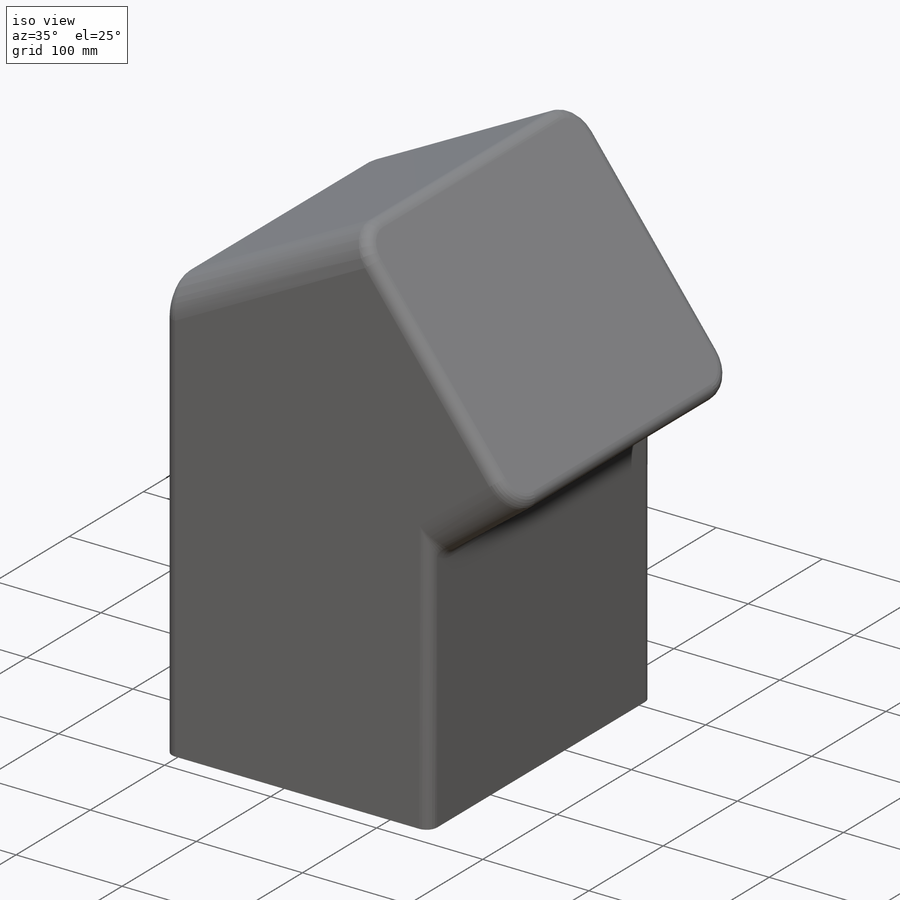
[diagram: iso view]
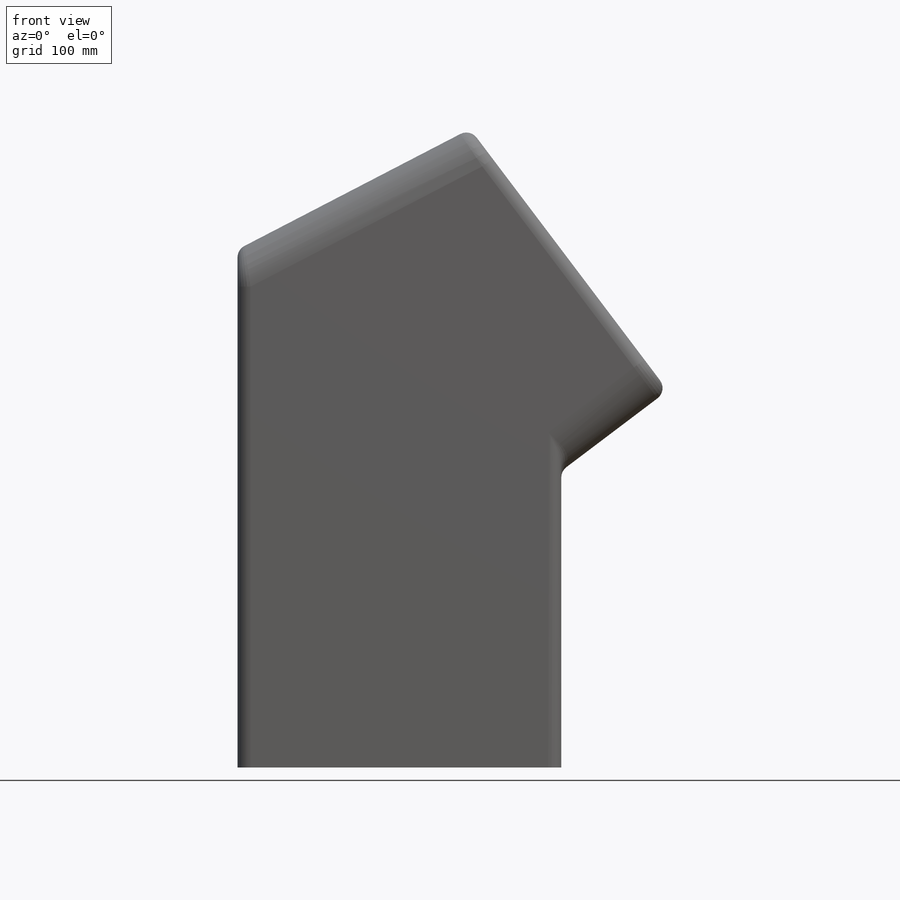
[diagram: front view]
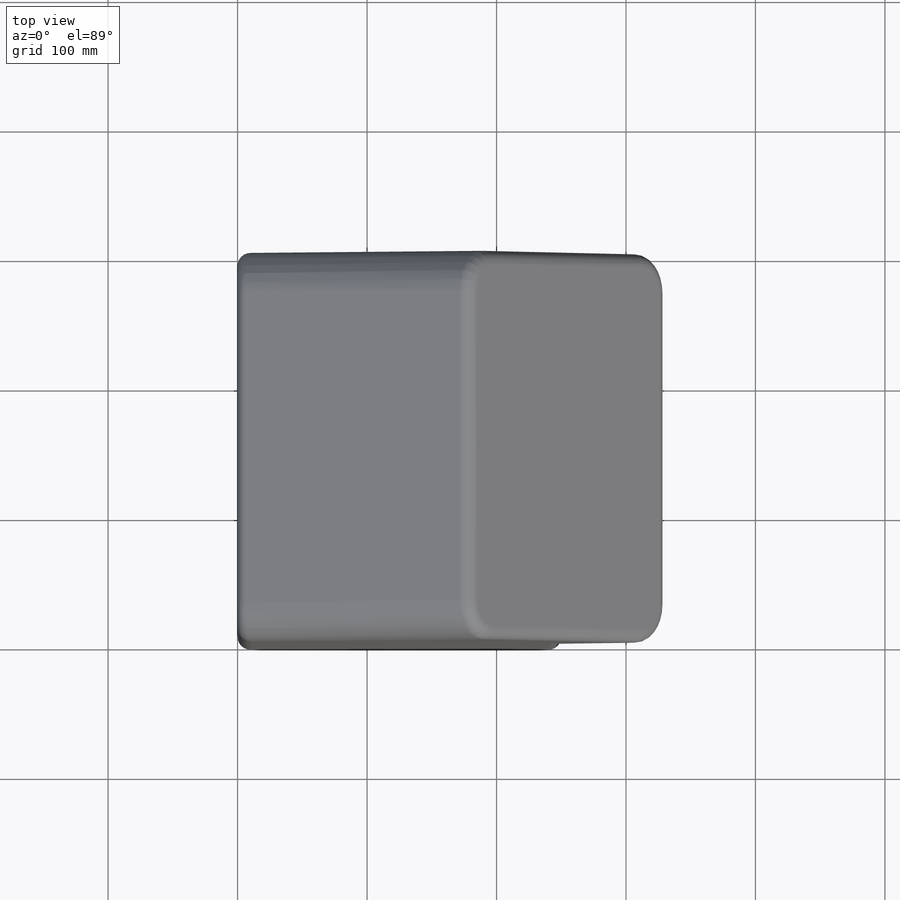
[diagram: top view]
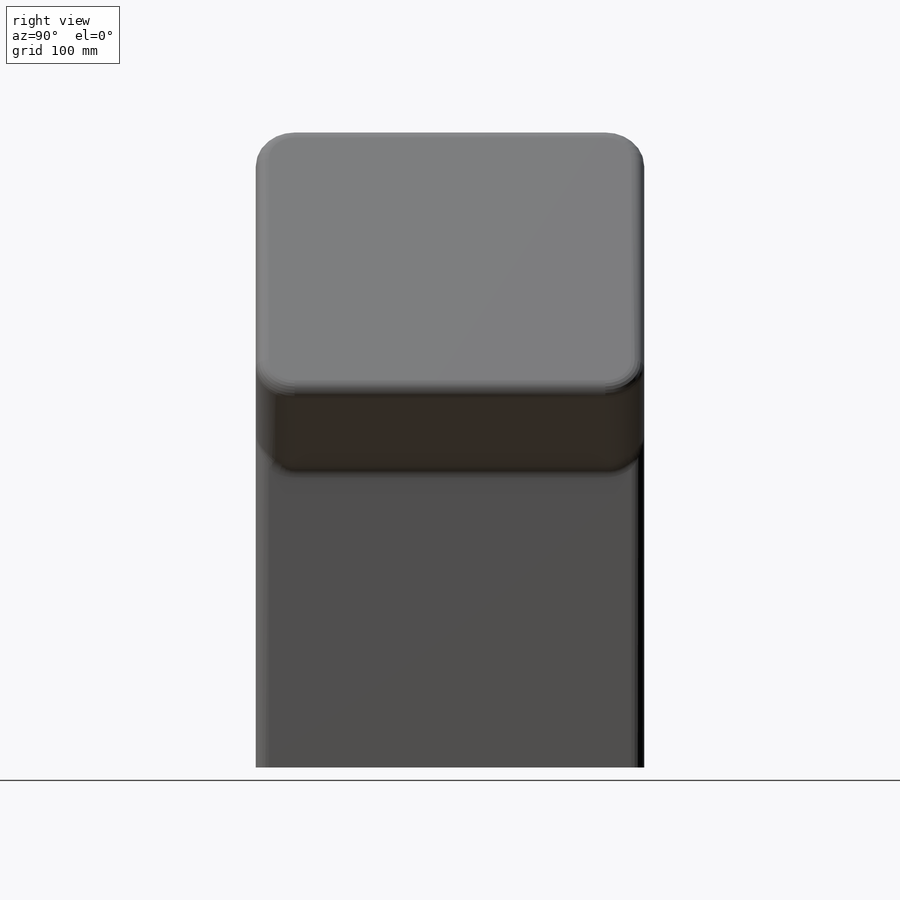
[diagram: right view]
SOLIDWORKS PART (.sldprt)
format: sldprt  version: not decoded by parser v0  size: 205,824 bytes
history: native  units: mm
features: fillet x4, material x1, sketch x1, extrude x1 (+11 scaffold rows collapsed)
feature tree (18):
  scaffold x11  (default folders/planes/origin — collapsed)
  material  "Material <not specified>"
  sketch  "Sketch1"  dims[D1=400.0mm]
  extrude  "Boss-Extrude1"  Depth=300mm
  fillet  "Fillet4"  Radius=30mm
  fillet  "Fillet5"  Radius=10mm
  fillet  "Fillet6"  Radius=10mm
  fillet  "Fillet7"  Radius=10mm
decode coverage: 6 of 6 modeling features carry decoded parameters
note: suppression state not decoded; provenance and decode notes live in map.json
